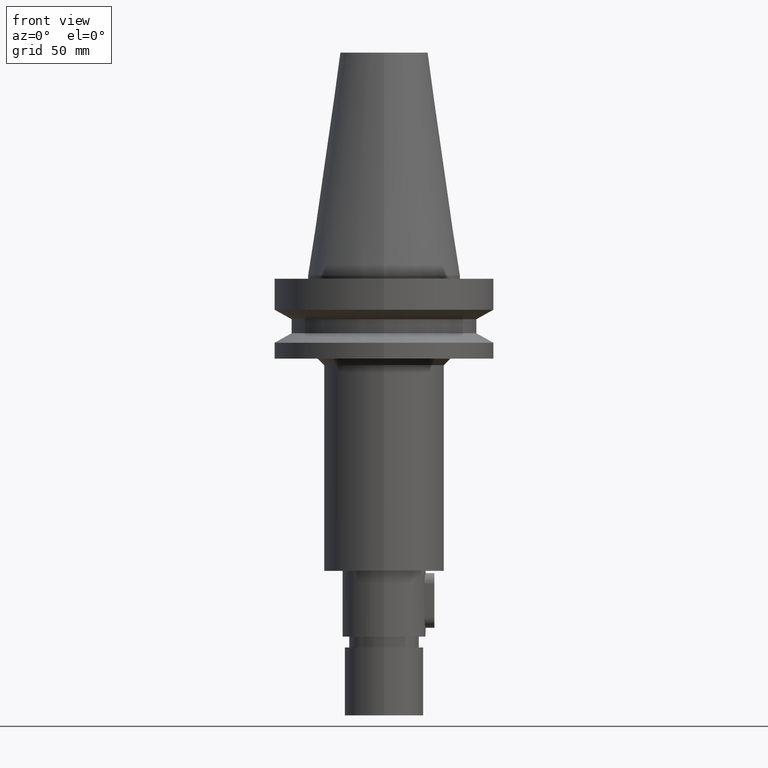
[diagram: clean part render]
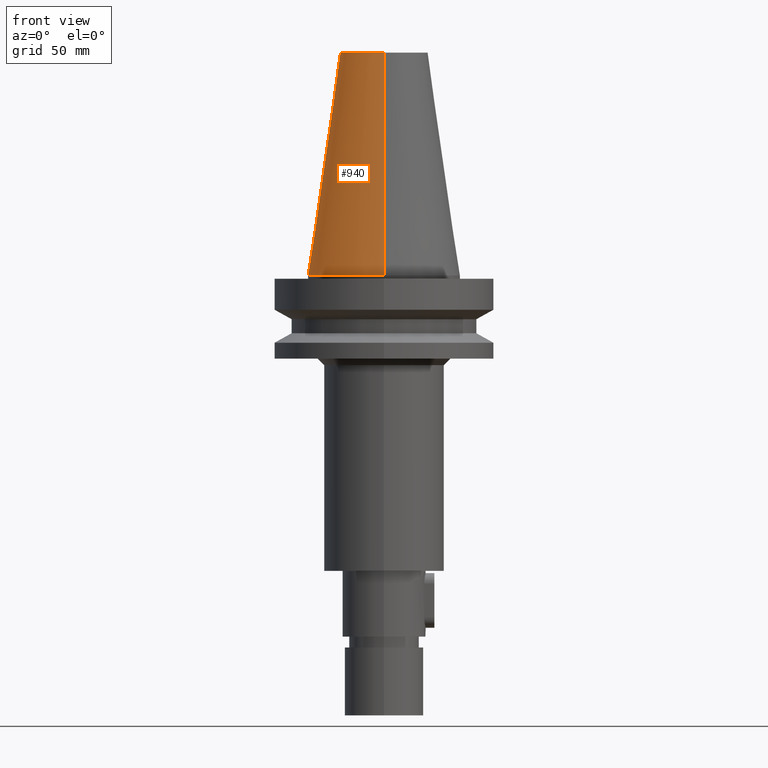
[diagram: same view with one face highlighted and labeled with its STEP entity id]
A machine part, front view. The second image highlights one B-rep face of the part: STEP entity #940.
In plain terms, the highlighted conical surface has half-angle 8.297 deg.
Its self-contained STEP definition (entity closure, byte-faithful):
#102=CARTESIAN_POINT('',(0.E0,1.847992019913E-14,1.018E2));
#103=DIRECTION('',(0.E0,0.E0,-1.E0));
#104=DIRECTION('',(0.E0,-1.E0,0.E0));
#105=AXIS2_PLACEMENT_3D('',#102,#103,#104);
#126=DIRECTION('',(0.E0,1.443043893539E-1,-9.895333461856E-1));
#127=VECTOR('',#126,1.028767755957E2);
#128=CARTESIAN_POINT('',(0.E0,2.007942971896E1,1.018E2));
#129=LINE('',#128,#127);
#141=DIRECTION('',(0.E0,-1.443043893539E-1,-9.895333461856E-1));
#142=VECTOR('',#141,1.028767755957E2);
#143=CARTESIAN_POINT('',(0.E0,-2.007942971896E1,1.018E2));
#144=LINE('',#143,#142);
#148=CARTESIAN_POINT('',(0.E0,1.847992019913E-14,3.979039320257E-13));
#149=DIRECTION('',(0.E0,0.E0,-1.E0));
#150=DIRECTION('',(0.E0,-1.E0,0.E0));
#151=AXIS2_PLACEMENT_3D('',#148,#149,#150);
#722=CARTESIAN_POINT('',(0.E0,2.007942971896E1,1.018E2));
#723=CARTESIAN_POINT('',(0.E0,-2.007942971896E1,1.018E2));
#724=VERTEX_POINT('',#722);
#725=VERTEX_POINT('',#723);
#726=CARTESIAN_POINT('',(0.E0,3.4925E1,4.689582056017E-13));
#727=VERTEX_POINT('',#726);
#728=CARTESIAN_POINT('',(0.E0,-3.4925E1,3.979039320257E-13));
#729=VERTEX_POINT('',#728);
#928=CARTESIAN_POINT('',(0.E0,1.847992019913E-14,5.09E1));
#929=DIRECTION('',(0.E0,0.E0,-1.E0));
#930=DIRECTION('',(0.E0,-1.E0,0.E0));
#931=AXIS2_PLACEMENT_3D('',#928,#929,#930);
#932=CONICAL_SURFACE('',#931,2.750221485948E1,8.297E0);
#933=ORIENTED_EDGE('',*,*,#918,.F.);
#934=ORIENTED_EDGE('',*,*,#904,.F.);
#935=ORIENTED_EDGE('',*,*,#922,.T.);
#937=ORIENTED_EDGE('',*,*,#936,.T.);
#938=EDGE_LOOP('',(#933,#934,#935,#937));
#939=FACE_OUTER_BOUND('',#938,.F.);
#106=CIRCLE('',#105,2.007942971896E1);
#152=CIRCLE('',#151,3.4925E1);
#904=EDGE_CURVE('',#725,#724,#106,.T.);
#918=EDGE_CURVE('',#724,#727,#129,.T.);
#922=EDGE_CURVE('',#725,#729,#144,.T.);
#936=EDGE_CURVE('',#729,#727,#152,.T.);
#940=ADVANCED_FACE('',(#939),#932,.T.);